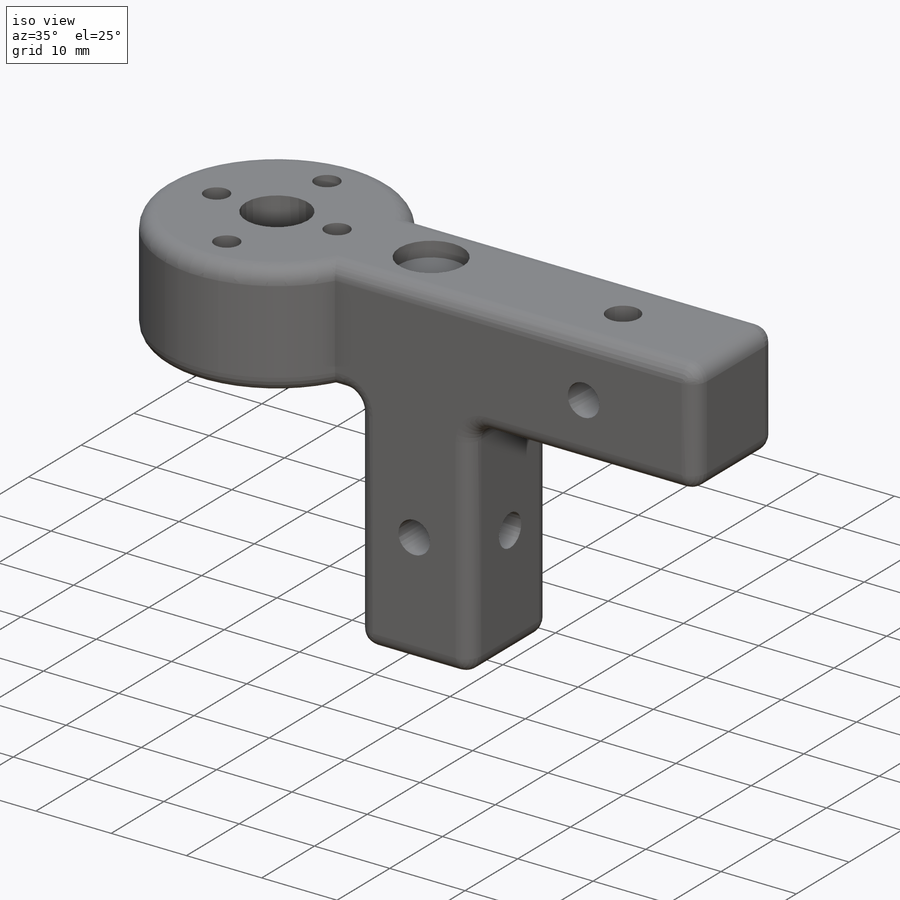
[diagram: iso view]
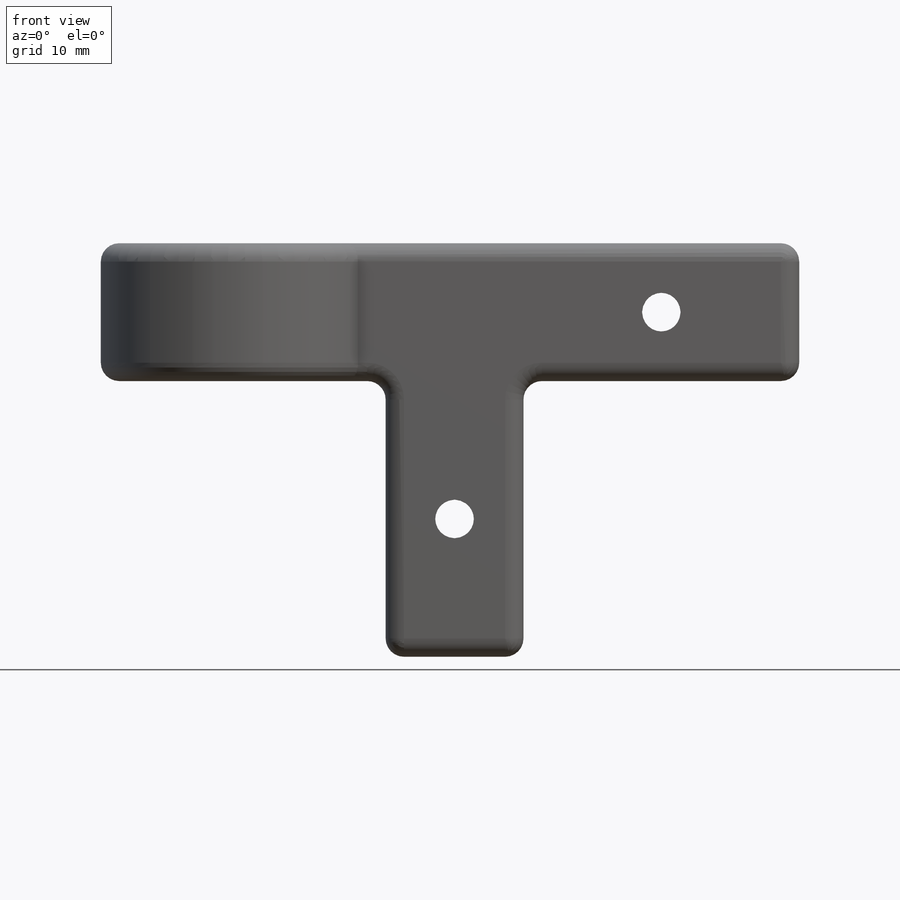
[diagram: front view]
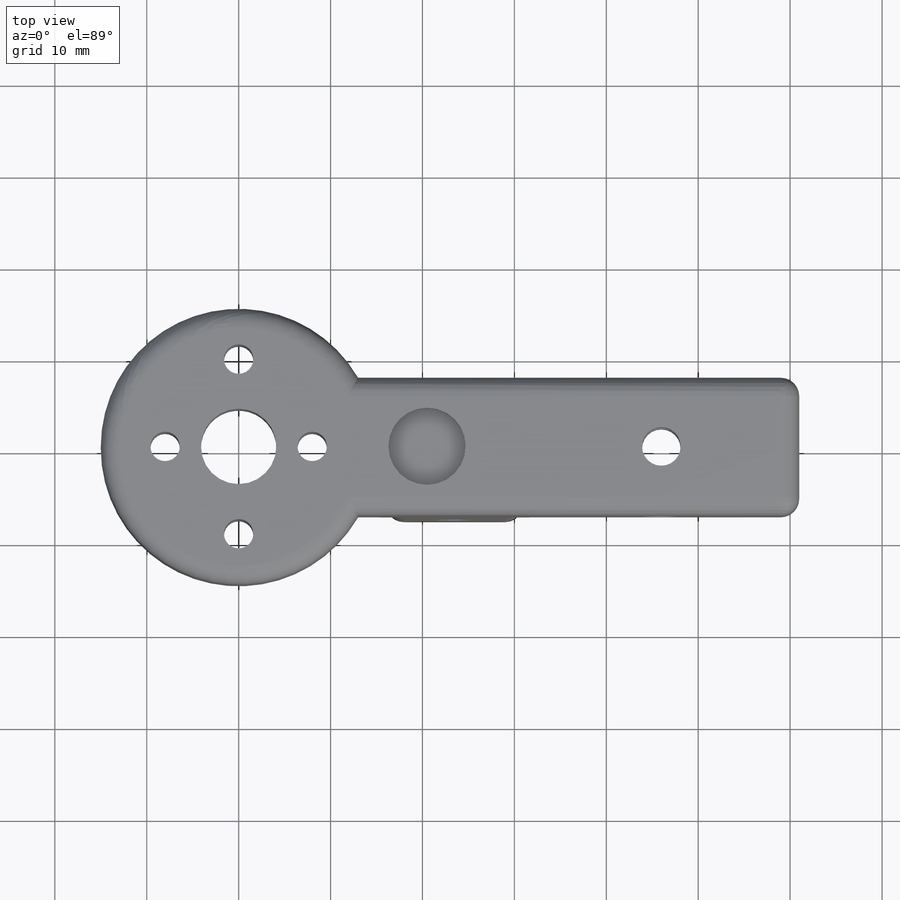
[diagram: top view]
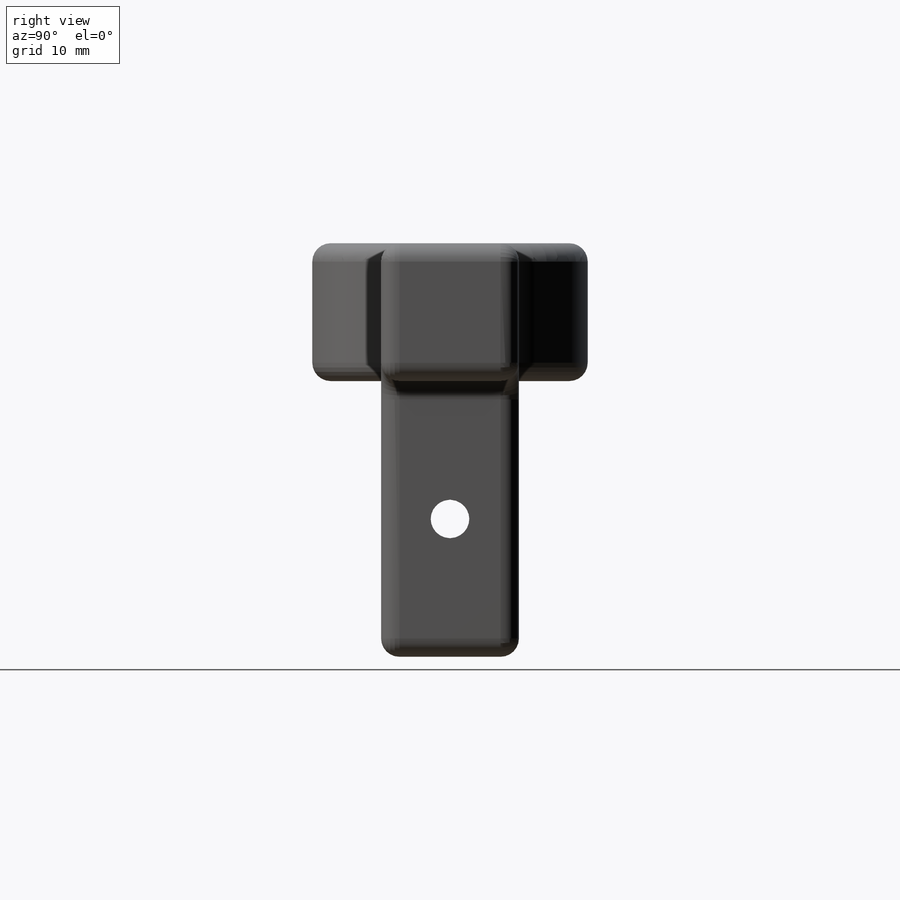
[diagram: right view]
SOLIDWORKS PART (.sldprt)
format: sldprt  version: not decoded by parser v0  size: 357,888 bytes
history: native  units: mm
features: sketch x6, cut_extrude x4, extrude x2, material x1, fillet x1 (+12 scaffold rows collapsed)
feature tree (26):
  scaffold x12  (default folders/planes/origin — collapsed)
  material  "Material <not specified>"
  sketch  "Sketch1"  dims[D1=30.0mm D2=15.0mm D3=45.0mm D4=3.0mm]
  extrude  "Boss-Extrude1"  Depth=15mm
  sketch  "Sketch2"  dims[c1.D1=8.2mm c1.D2=3.2mm c1.D3=3.2mm c1.D4=3.2mm c1.D5=3.2mm c1.D10=4.0mm c1.D12=4.0mm c1.D13=4.2mm c1.D6=8.0mm c1.D7=8.0mm c1.D8=9.5mm c1.D9=9.5mm c2.D10=15.0mm c2.D11=10.0mm]
  cut_extrude  "top-gaten"  Depth=15mm
  sketch  "Sketch3"  dims[D1=15.0mm D2=3.0mm]
  extrude  "Onder-extrude"  Depth=30mm
  sketch  "Sketch4"  dims[D1=4.2mm D2=4.0mm D3=4.0mm D4=4.2mm D5=7.5mm D6=15.0mm D7=10.0mm D8=7.5mm D9=15.0mm D10=10.0mm]
  cut_extrude  "Z-gaten"  Depth=15mm
  sketch  "Sketch5"  dims[D1=4.2mm D2=4.0mm D3=15.0mm D4=10.0mm D5=7.5mm]
  cut_extrude  "Cut-Extrude3"  Depth=15mm
  sketch  "Sketch6"  dims[c1.D1=~3.966789mm c1.D3=8.4mm c1.D4=~6.569019mm c2.D1=40.5mm c2.D2=7.5mm]
  cut_extrude  "Cut-Extrude4"  Depth=2mm
  fillet  "Fillet2"  Radius=2mm
decode coverage: 13 of 13 modeling features carry decoded parameters
note: ~ marks probable driven/reference dimensions
note: suppression state not decoded; provenance and decode notes live in map.json
